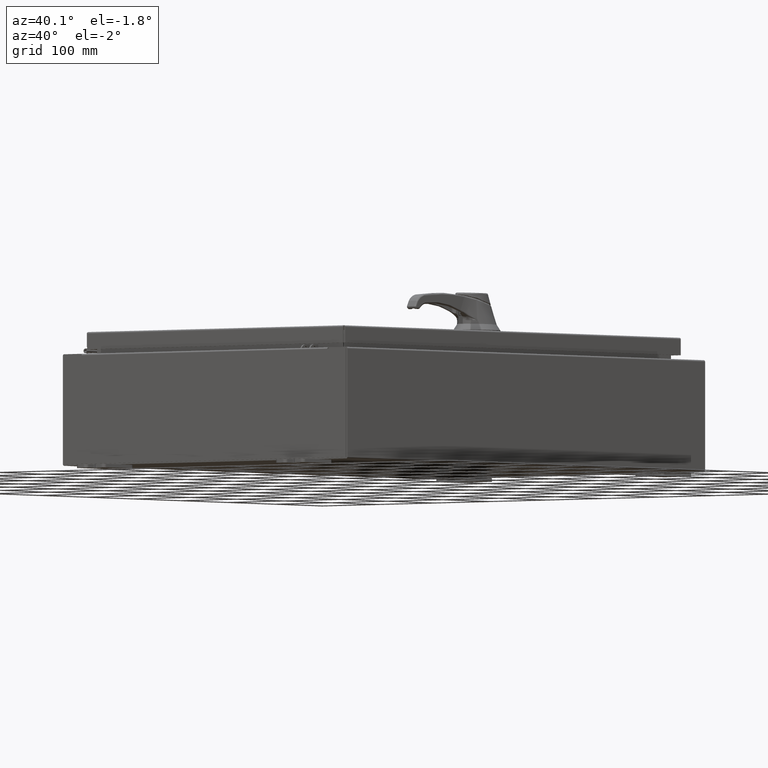
[diagram: clean part render]
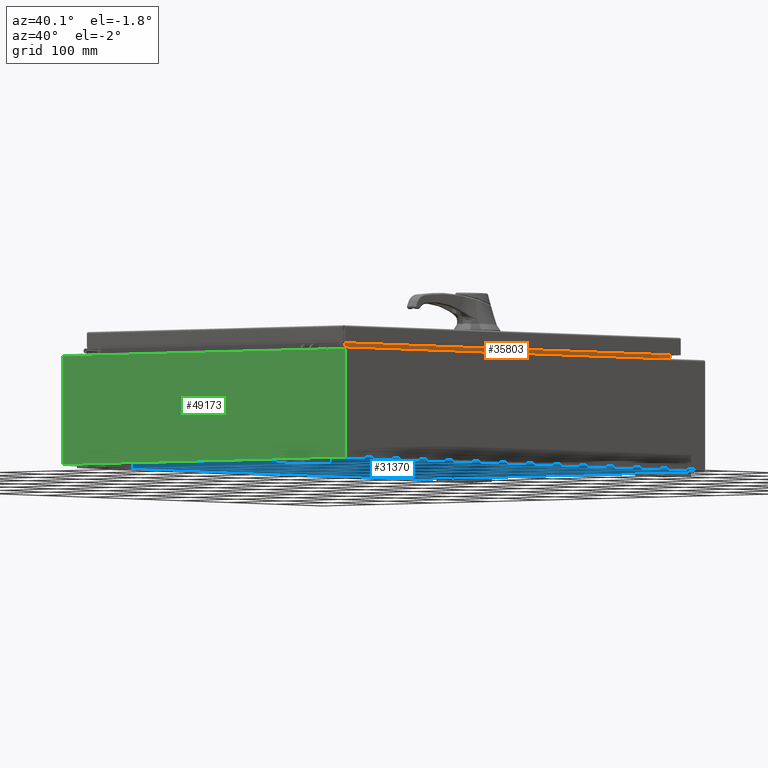
[diagram: same view with three faces highlighted in distinct colors, each labeled with its STEP entity id]
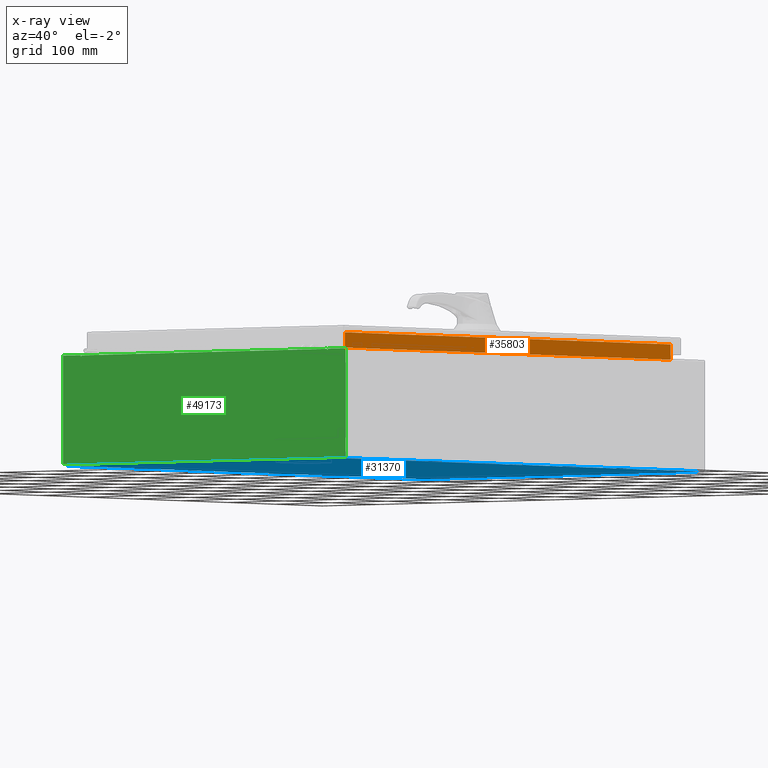
[diagram: x-ray of the same camera — body ghosted, the three highlighted faces saturated]
A machine part, auxiliary view with three faces highlighted in distinct colors.
The next image is the same camera in x-ray (body ghosted, the three faces saturated) — at least one of them is partly hidden behind the body in this view.
Their STEP definitions:

[orange] entity #35803 — the highlighted planar face has unit normal (1, 0, -0).
#2423 = DIRECTION ( 'NONE',  ( -3.542869979895294000E-015, -0.0000000000000000000, -1.000000000000000000 ) ) ;
#7559 = VECTOR ( 'NONE', #71285, 39.37007874015748100 ) ;
#10641 = AXIS2_PLACEMENT_3D ( 'NONE', #11708, #30088, #94151 ) ;
#11708 = CARTESIAN_POINT ( 'NONE',  ( 8.699699999999998200, 0.0000000000000000000, -3.082190596409509000E-014 ) ) ;
#15248 = EDGE_CURVE ( 'NONE', #85210, #22668, #59025, .T. ) ;
#16580 = VERTEX_POINT ( 'NONE', #104401 ) ;
#18792 = DIRECTION ( 'NONE',  ( 8.038541222736220000E-017, -1.000000000000000000, 1.205781183410432900E-016 ) ) ;
#21088 = ORIENTED_EDGE ( 'NONE', *, *, #37991, .F. ) ;
#22668 = VERTEX_POINT ( 'NONE', #32796 ) ;
#30088 = DIRECTION ( 'NONE',  ( 1.000000000000000000, 0.0000000000000000000, -3.542869979895294000E-015 ) ) ;
#30139 = EDGE_CURVE ( 'NONE', #16580, #85210, #71210, .T. ) ;
#31315 = EDGE_CURVE ( 'NONE', #22668, #64569, #102548, .T. ) ;
#32796 = CARTESIAN_POINT ( 'NONE',  ( 8.699700000000023100, -13.59374999999999800, 6.762900000000009900 ) ) ;
#35803 = ADVANCED_FACE ( 'NONE', ( #77400 ), #75710, .T. ) ;
#37991 = EDGE_CURVE ( 'NONE', #64569, #16580, #71585, .T. ) ;
#44381 = VECTOR ( 'NONE', #2423, 39.37007874015748100 ) ;
#46650 = CARTESIAN_POINT ( 'NONE',  ( 8.699700000000021300, 13.59375000000000700, 6.762900000000009900 ) ) ;
#51556 = CARTESIAN_POINT ( 'NONE',  ( 8.699700000000021300, -13.59374999999999800, 6.762900000000009900 ) ) ;
#59025 = LINE ( 'NONE', #116910, #7559 ) ;
#60734 = DIRECTION ( 'NONE',  ( 0.0000000000000000000, 1.000000000000000000, 0.0000000000000000000 ) ) ;
#64569 = VERTEX_POINT ( 'NONE', #46650 ) ;
#66186 = EDGE_LOOP ( 'NONE', ( #21088, #82547, #79532, #106816 ) ) ;
#71210 = LINE ( 'NONE', #110391, #74025 ) ;
#71285 = DIRECTION ( 'NONE',  ( 3.542869979895302300E-015, -0.0000000000000000000, 1.000000000000000000 ) ) ;
#71585 = LINE ( 'NONE', #93661, #44381 ) ;
#74025 = VECTOR ( 'NONE', #18792, 39.37007874015748100 ) ;
#75710 = PLANE ( 'NONE',  #10641 ) ;
#77400 = FACE_OUTER_BOUND ( 'NONE', #66186, .T. ) ;
#79532 = ORIENTED_EDGE ( 'NONE', *, *, #15248, .F. ) ;
#82547 = ORIENTED_EDGE ( 'NONE', *, *, #31315, .F. ) ;
#85210 = VERTEX_POINT ( 'NONE', #91029 ) ;
#91029 = CARTESIAN_POINT ( 'NONE',  ( 8.699700000000019500, -13.59375000000000000, 5.938300000000011500 ) ) ;
#93661 = CARTESIAN_POINT ( 'NONE',  ( 8.699700000000019500, 13.59375000000000700, 5.925300000000009800 ) ) ;
#94151 = DIRECTION ( 'NONE',  ( -3.542869979895294000E-015, 0.0000000000000000000, -1.000000000000000000 ) ) ;
#99686 = VECTOR ( 'NONE', #60734, 39.37007874015748100 ) ;
#102548 = LINE ( 'NONE', #51556, #99686 ) ;
#104401 = CARTESIAN_POINT ( 'NONE',  ( 8.699700000000019500, 13.59375000000000900, 5.938300000000011500 ) ) ;
#106816 = ORIENTED_EDGE ( 'NONE', *, *, #30139, .F. ) ;
#110391 = CARTESIAN_POINT ( 'NONE',  ( 8.699700000000019500, 13.59375000000000700, 5.938300000000010600 ) ) ;
#116910 = CARTESIAN_POINT ( 'NONE',  ( 8.699700000000023100, -13.59374999999999800, 6.850600000000010700 ) ) ;

[blue] entity #31370 — the highlighted planar face has unit normal (0, 0, -1).
#6384 = DIRECTION ( 'NONE',  ( 0.0000000000000000000, 0.0000000000000000000, -1.000000000000000000 ) ) ;
#11770 = ORIENTED_EDGE ( 'NONE', *, *, #51631, .T. ) ;
#14559 = EDGE_CURVE ( 'NONE', #98783, #101137, #72044, .T. ) ;
#22845 = CARTESIAN_POINT ( 'NONE',  ( 9.912300000000000100, 14.92530000000000500, -0.07469999999999994700 ) ) ;
#23362 = VECTOR ( 'NONE', #35758, 39.37007874015748100 ) ;
#26187 = DIRECTION ( 'NONE',  ( 1.000000000000000000, 0.0000000000000000000, 0.0000000000000000000 ) ) ;
#31022 = CARTESIAN_POINT ( 'NONE',  ( -9.912300000000000100, -14.92529999999999600, -0.07469999999999994700 ) ) ;
#31092 = CARTESIAN_POINT ( 'NONE',  ( -9.912300000000000100, -14.92529999999999600, -0.07469999999999994700 ) ) ;
#31370 = ADVANCED_FACE ( 'NONE', ( #48062 ), #51948, .T. ) ;
#35758 = DIRECTION ( 'NONE',  ( -1.000000000000000000, -0.0000000000000000000, -0.0000000000000000000 ) ) ;
#44309 = VERTEX_POINT ( 'NONE', #78403 ) ;
#44971 = CARTESIAN_POINT ( 'NONE',  ( -10.00000000000000000, 14.92530000000000500, -0.07470000000000000300 ) ) ;
#45408 = ORIENTED_EDGE ( 'NONE', *, *, #81923, .F. ) ;
#47209 = VECTOR ( 'NONE', #95065, 39.37007874015748100 ) ;
#48062 = FACE_OUTER_BOUND ( 'NONE', #89788, .T. ) ;
#51631 = EDGE_CURVE ( 'NONE', #98783, #44309, #92769, .T. ) ;
#51948 = PLANE ( 'NONE',  #84722 ) ;
#60496 = LINE ( 'NONE', #80972, #109193 ) ;
#70381 = DIRECTION ( 'NONE',  ( -1.000000000000000000, 0.0000000000000000000, -0.0000000000000000000 ) ) ;
#71589 = LINE ( 'NONE', #31022, #47209 ) ;
#72044 = LINE ( 'NONE', #44971, #23362 ) ;
#75457 = ORIENTED_EDGE ( 'NONE', *, *, #14559, .F. ) ;
#78403 = CARTESIAN_POINT ( 'NONE',  ( 9.912300000000000100, -14.92529999999999600, -0.07470000000000000300 ) ) ;
#80972 = CARTESIAN_POINT ( 'NONE',  ( -10.00000000000000000, -14.92529999999999600, -0.07470000000000000300 ) ) ;
#81923 = EDGE_CURVE ( 'NONE', #94287, #44309, #60496, .T. ) ;
#84722 = AXIS2_PLACEMENT_3D ( 'NONE', #88391, #6384, #70381 ) ;
#88391 = CARTESIAN_POINT ( 'NONE',  ( 0.0000000000000000000, 0.0000000000000000000, -0.07470000000000000300 ) ) ;
#89788 = EDGE_LOOP ( 'NONE', ( #45408, #90219, #75457, #11770 ) ) ;
#90219 = ORIENTED_EDGE ( 'NONE', *, *, #108483, .T. ) ;
#92769 = LINE ( 'NONE', #107319, #114217 ) ;
#94287 = VERTEX_POINT ( 'NONE', #31092 ) ;
#95065 = DIRECTION ( 'NONE',  ( -0.0000000000000000000, 1.000000000000000000, -0.0000000000000000000 ) ) ;
#98783 = VERTEX_POINT ( 'NONE', #22845 ) ;
#101137 = VERTEX_POINT ( 'NONE', #107278 ) ;
#107278 = CARTESIAN_POINT ( 'NONE',  ( -9.912300000000000100, 14.92530000000000500, -0.07470000000000000300 ) ) ;
#107319 = CARTESIAN_POINT ( 'NONE',  ( 9.912300000000000100, 14.92530000000000500, -0.07469999999999994700 ) ) ;
#108483 = EDGE_CURVE ( 'NONE', #94287, #101137, #71589, .T. ) ;
#109193 = VECTOR ( 'NONE', #26187, 39.37007874015748100 ) ;
#114217 = VECTOR ( 'NONE', #116525, 39.37007874015748100 ) ;
#116525 = DIRECTION ( 'NONE',  ( -0.0000000000000000000, -1.000000000000000000, -0.0000000000000000000 ) ) ;

[green] entity #49173 — the highlighted planar face has unit normal (-0, 1, -0).
#1176 = VERTEX_POINT ( 'NONE', #103141 ) ;
#2055 = VERTEX_POINT ( 'NONE', #36311 ) ;
#3236 = DIRECTION ( 'NONE',  ( 0.0000000000000000000, 0.0000000000000000000, -1.000000000000000000 ) ) ;
#3591 = ORIENTED_EDGE ( 'NONE', *, *, #14544, .T. ) ;
#4208 = VERTEX_POINT ( 'NONE', #61708 ) ;
#4786 = VECTOR ( 'NONE', #117805, 39.37007874015748100 ) ;
#5507 = VERTEX_POINT ( 'NONE', #68531 ) ;
#8023 = EDGE_LOOP ( 'NONE', ( #106594, #74156, #63333, #116934, #18273, #19650, #12228, #86392, #36644, #113719, #3591, #33028 ) ) ;
#8535 = LINE ( 'NONE', #18813, #97280 ) ;
#12228 = ORIENTED_EDGE ( 'NONE', *, *, #28019, .F. ) ;
#14490 = EDGE_CURVE ( 'NONE', #112011, #95043, #74862, .T. ) ;
#14544 = EDGE_CURVE ( 'NONE', #45158, #83772, #29089, .T. ) ;
#16489 = CARTESIAN_POINT ( 'NONE',  ( 8.655875000000000000, 0.0000000000000000000, 2.874950000000000600 ) ) ;
#18273 = ORIENTED_EDGE ( 'NONE', *, *, #14490, .F. ) ;
#18813 = CARTESIAN_POINT ( 'NONE',  ( 8.674549999999813500, -0.0000000000000000000, -5.647877341832707700E-013 ) ) ;
#19395 = VERTEX_POINT ( 'NONE', #113728 ) ;
#19650 = ORIENTED_EDGE ( 'NONE', *, *, #108106, .F. ) ;
#20569 = EDGE_CURVE ( 'NONE', #62656, #1176, #114183, .T. ) ;
#20857 = EDGE_CURVE ( 'NONE', #2055, #4208, #48260, .T. ) ;
#21191 = AXIS2_PLACEMENT_3D ( 'NONE', #96133, #41285, #105316 ) ;
#24710 = CARTESIAN_POINT ( 'NONE',  ( -9.925300000000000000, 0.0000000000000000000, 2.925300000000000500 ) ) ;
#25655 = DIRECTION ( 'NONE',  ( 0.0000000000000000000, 0.0000000000000000000, -1.000000000000000000 ) ) ;
#26195 = CARTESIAN_POINT ( 'NONE',  ( -9.925300000000000000, 0.0000000000000000000, 2.925300000000000500 ) ) ;
#26579 = DIRECTION ( 'NONE',  ( -0.0000000000000000000, -0.0000000000000000000, 1.000000000000000000 ) ) ;
#27249 = CIRCLE ( 'NONE', #78283, 0.01867500000000003900 ) ;
#28019 = EDGE_CURVE ( 'NONE', #2055, #5507, #8535, .T. ) ;
#29089 = LINE ( 'NONE', #26195, #50523 ) ;
#30045 = FACE_OUTER_BOUND ( 'NONE', #8023, .T. ) ;
#33028 = ORIENTED_EDGE ( 'NONE', *, *, #69930, .T. ) ;
#33882 = DIRECTION ( 'NONE',  ( 1.000000000000000000, 0.0000000000000000000, 0.0000000000000000000 ) ) ;
#34160 = EDGE_CURVE ( 'NONE', #101771, #44870, #47505, .T. ) ;
#35003 = DIRECTION ( 'NONE',  ( 1.000000000000000000, 0.0000000000000000000, 0.0000000000000000000 ) ) ;
#36311 = CARTESIAN_POINT ( 'NONE',  ( 8.674550000000001800, 0.0000000000000000000, 2.925300000000000500 ) ) ;
#36644 = ORIENTED_EDGE ( 'NONE', *, *, #71330, .T. ) ;
#41285 = DIRECTION ( 'NONE',  ( -0.0000000000000000000, 1.000000000000000000, -0.0000000000000000000 ) ) ;
#42198 = VECTOR ( 'NONE', #35003, 39.37007874015748100 ) ;
#44058 = VECTOR ( 'NONE', #52819, 39.37007874015748100 ) ;
#44870 = VERTEX_POINT ( 'NONE', #115072 ) ;
#45158 = VERTEX_POINT ( 'NONE', #64140 ) ;
#46946 = DIRECTION ( 'NONE',  ( 0.0000000000000000000, -1.000000000000000000, 0.0000000000000000000 ) ) ;
#47505 = LINE ( 'NONE', #61293, #114833 ) ;
#48260 = LINE ( 'NONE', #24710, #97003 ) ;
#49173 = ADVANCED_FACE ( 'NONE', ( #30045 ), #74147, .F. ) ;
#50523 = VECTOR ( 'NONE', #26579, 39.37007874015748100 ) ;
#52434 = CIRCLE ( 'NONE', #21191, 0.01867500000000003900 ) ;
#52819 = DIRECTION ( 'NONE',  ( 0.0000000000000000000, 0.0000000000000000000, 1.000000000000000000 ) ) ;
#53381 = CARTESIAN_POINT ( 'NONE',  ( 9.925300000000000000, 0.0000000000000000000, 2.925300000000000500 ) ) ;
#53786 = CARTESIAN_POINT ( 'NONE',  ( 8.637200000000000000, 0.0000000000000000000, 0.0000000000000000000 ) ) ;
#54728 = LINE ( 'NONE', #53381, #76203 ) ;
#55565 = DIRECTION ( 'NONE',  ( -6.510859170600007400E-014, 0.0000000000000000000, -1.000000000000000000 ) ) ;
#55937 = LINE ( 'NONE', #102666, #68837 ) ;
#58304 = CARTESIAN_POINT ( 'NONE',  ( -9.925300000000000000, 0.0000000000000000000, -2.925299999999999600 ) ) ;
#61293 = CARTESIAN_POINT ( 'NONE',  ( -8.637199999999996400, -0.0000000000000000000, 0.0000000000000000000 ) ) ;
#61708 = CARTESIAN_POINT ( 'NONE',  ( 9.925300000000000000, 0.0000000000000000000, 2.925300000000000500 ) ) ;
#62591 = DIRECTION ( 'NONE',  ( 0.0000000000000000000, 0.0000000000000000000, -1.000000000000000000 ) ) ;
#62656 = VERTEX_POINT ( 'NONE', #74461 ) ;
#63333 = ORIENTED_EDGE ( 'NONE', *, *, #34160, .F. ) ;
#64140 = CARTESIAN_POINT ( 'NONE',  ( -9.925300000000000000, 0.0000000000000000000, -2.925299999999999600 ) ) ;
#66197 = DIRECTION ( 'NONE',  ( 1.000000000000000000, 0.0000000000000000000, 0.0000000000000000000 ) ) ;
#68531 = CARTESIAN_POINT ( 'NONE',  ( 8.674550000000000000, 0.0000000000000000000, 2.874950000000000600 ) ) ;
#68837 = VECTOR ( 'NONE', #66197, 39.37007874015748100 ) ;
#69930 = EDGE_CURVE ( 'NONE', #83772, #1176, #90879, .T. ) ;
#71330 = EDGE_CURVE ( 'NONE', #4208, #19395, #54728, .T. ) ;
#74147 = PLANE ( 'NONE',  #99473 ) ;
#74156 = ORIENTED_EDGE ( 'NONE', *, *, #114219, .F. ) ;
#74461 = CARTESIAN_POINT ( 'NONE',  ( -8.674549999999996400, 0.0000000000000000000, 2.874950000000000600 ) ) ;
#74862 = LINE ( 'NONE', #53786, #4786 ) ;
#76203 = VECTOR ( 'NONE', #62591, 39.37007874015748100 ) ;
#78283 = AXIS2_PLACEMENT_3D ( 'NONE', #16489, #80428, #25655 ) ;
#79107 = CARTESIAN_POINT ( 'NONE',  ( 8.637200000000000000, 0.0000000000000000000, 2.874950000000000600 ) ) ;
#80428 = DIRECTION ( 'NONE',  ( -0.0000000000000000000, 1.000000000000000000, -0.0000000000000000000 ) ) ;
#82532 = CARTESIAN_POINT ( 'NONE',  ( -8.637199999999996400, 1.024442997624098700E-016, 2.912300000000000600 ) ) ;
#83772 = VERTEX_POINT ( 'NONE', #98913 ) ;
#86392 = ORIENTED_EDGE ( 'NONE', *, *, #20857, .T. ) ;
#89873 = CARTESIAN_POINT ( 'NONE',  ( -9.925300000000000000, 0.0000000000000000000, 2.925300000000000500 ) ) ;
#90879 = LINE ( 'NONE', #89873, #42198 ) ;
#93435 = EDGE_CURVE ( 'NONE', #101771, #95043, #55937, .T. ) ;
#95043 = VERTEX_POINT ( 'NONE', #107362 ) ;
#95945 = VECTOR ( 'NONE', #113166, 39.37007874015748100 ) ;
#96133 = CARTESIAN_POINT ( 'NONE',  ( -8.655874999999996400, 0.0000000000000000000, 2.874950000000000600 ) ) ;
#97003 = VECTOR ( 'NONE', #33882, 39.37007874015748100 ) ;
#97280 = VECTOR ( 'NONE', #55565, 39.37007874015748100 ) ;
#98913 = CARTESIAN_POINT ( 'NONE',  ( -9.925300000000000000, 0.0000000000000000000, 2.925300000000000500 ) ) ;
#99473 = AXIS2_PLACEMENT_3D ( 'NONE', #101777, #46946, #110978 ) ;
#101664 = LINE ( 'NONE', #58304, #95945 ) ;
#101771 = VERTEX_POINT ( 'NONE', #82532 ) ;
#101777 = CARTESIAN_POINT ( 'NONE',  ( 0.0000000000000000000, 0.0000000000000000000, 0.0000000000000000000 ) ) ;
#102666 = CARTESIAN_POINT ( 'NONE',  ( -8.637200000000000000, 1.024442997624098700E-016, 2.912300000000000600 ) ) ;
#103141 = CARTESIAN_POINT ( 'NONE',  ( -8.674549999999996400, 0.0000000000000000000, 2.925300000000000500 ) ) ;
#105316 = DIRECTION ( 'NONE',  ( 0.0000000000000000000, 0.0000000000000000000, -1.000000000000000000 ) ) ;
#106594 = ORIENTED_EDGE ( 'NONE', *, *, #20569, .F. ) ;
#107362 = CARTESIAN_POINT ( 'NONE',  ( 8.637200000000000000, 0.0000000000000000000, 2.912300000000000600 ) ) ;
#107643 = CARTESIAN_POINT ( 'NONE',  ( -8.674549999999996400, -0.0000000000000000000, 0.0000000000000000000 ) ) ;
#108106 = EDGE_CURVE ( 'NONE', #5507, #112011, #27249, .T. ) ;
#108463 = EDGE_CURVE ( 'NONE', #19395, #45158, #101664, .T. ) ;
#110978 = DIRECTION ( 'NONE',  ( 0.0000000000000000000, -0.0000000000000000000, -1.000000000000000000 ) ) ;
#112011 = VERTEX_POINT ( 'NONE', #79107 ) ;
#113166 = DIRECTION ( 'NONE',  ( -1.000000000000000000, -0.0000000000000000000, -0.0000000000000000000 ) ) ;
#113719 = ORIENTED_EDGE ( 'NONE', *, *, #108463, .T. ) ;
#113728 = CARTESIAN_POINT ( 'NONE',  ( 9.925300000000000000, 0.0000000000000000000, -2.925299999999999600 ) ) ;
#114183 = LINE ( 'NONE', #107643, #44058 ) ;
#114219 = EDGE_CURVE ( 'NONE', #44870, #62656, #52434, .T. ) ;
#114833 = VECTOR ( 'NONE', #3236, 39.37007874015748100 ) ;
#115072 = CARTESIAN_POINT ( 'NONE',  ( -8.637199999999996400, -0.0000000000000000000, 2.874950000000000600 ) ) ;
#116934 = ORIENTED_EDGE ( 'NONE', *, *, #93435, .T. ) ;
#117805 = DIRECTION ( 'NONE',  ( 0.0000000000000000000, 0.0000000000000000000, 1.000000000000000000 ) ) ;